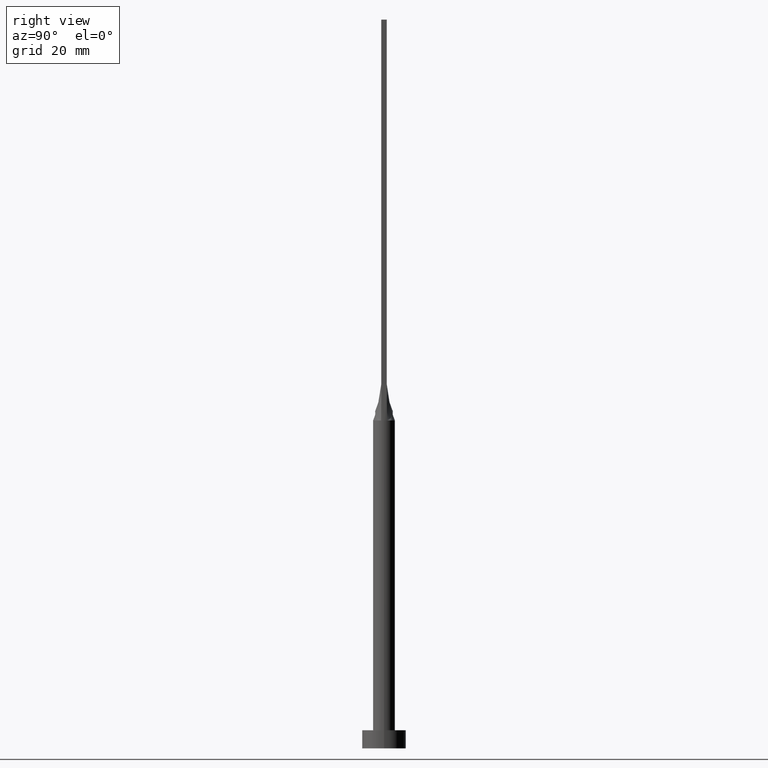
[diagram: clean part render]
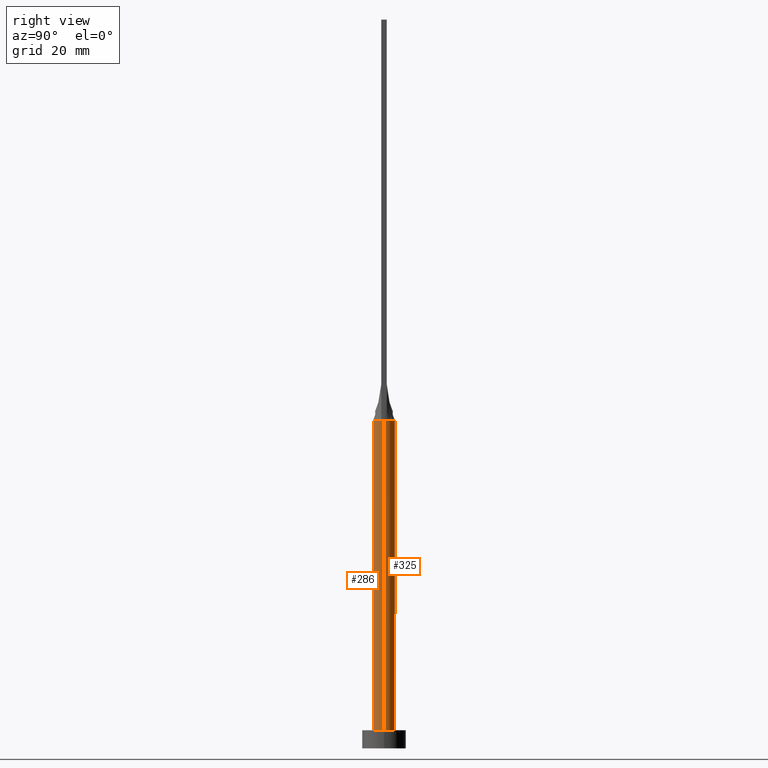
[diagram: same view with one multi-face feature highlighted, each face labeled with its STEP entity id]
A machine part, right view. The highlighted faces form ONE feature: a constant-radius fillet chain: 2 tangent blend faces with common blend radius 3 mm. The faces share edges in the B-rep.
Their STEP definitions:
[1] entity #286 (Cylinder):
#3 = FACE_OUTER_BOUND ( 'NONE', #113, .T. ) ;
#13 = DIRECTION ( 'NONE',  ( 0.000000000000000000, 0.000000000000000000, 1.000000000000000000 ) ) ;
#15 = CIRCLE ( 'NONE', #347, 3.000000000000000444 ) ;
#27 = CARTESIAN_POINT ( 'NONE',  ( -3.000000000000000444, 0.000000000000000000, 90.00000000000001421 ) ) ;
#33 = VERTEX_POINT ( 'NONE', #200 ) ;
#34 = EDGE_CURVE ( 'NONE', #555, #552, #298, .T. ) ;
#40 = DIRECTION ( 'NONE',  ( -0.000000000000000000, -0.000000000000000000, -1.000000000000000000 ) ) ;
#42 = EDGE_CURVE ( 'NONE', #243, #407, #15, .T. ) ;
#54 = AXIS2_PLACEMENT_3D ( 'NONE', #293, #13, #196 ) ;
#62 = ORIENTED_EDGE ( 'NONE', *, *, #455, .F. ) ;
#67 = DIRECTION ( 'NONE',  ( 1.000000000000000000, 0.000000000000000000, 0.000000000000000000 ) ) ;
#88 = VECTOR ( 'NONE', #40, 1000.000000000000000 ) ;
#90 = AXIS2_PLACEMENT_3D ( 'NONE', #124, #327, #253 ) ;
#108 = DIRECTION ( 'NONE',  ( 1.000000000000000000, -5.329070518200751394E-15, 0.000000000000000000 ) ) ;
#113 = EDGE_LOOP ( 'NONE', ( #247, #131, #62, #568, #150, #260 ) ) ;
#124 = CARTESIAN_POINT ( 'NONE',  ( 0.000000000000000000, 0.000000000000000000, 90.00000000000001421 ) ) ;
#128 = AXIS2_PLACEMENT_3D ( 'NONE', #236, #328, #67 ) ;
#130 = EDGE_CURVE ( 'NONE', #340, #33, #416, .T. ) ;
#131 = ORIENTED_EDGE ( 'NONE', *, *, #42, .F. ) ;
#144 = CARTESIAN_POINT ( 'NONE',  ( 3.000000000000000444, 3.673940397442060361E-16, 90.00000000000001421 ) ) ;
#150 = ORIENTED_EDGE ( 'NONE', *, *, #152, .T. ) ;
#152 = EDGE_CURVE ( 'NONE', #340, #555, #390, .T. ) ;
#196 = DIRECTION ( 'NONE',  ( 1.000000000000000000, 0.000000000000000000, 0.000000000000000000 ) ) ;
#200 = CARTESIAN_POINT ( 'NONE',  ( -2.894489875237701959, -0.7894071376467488577, 90.00000000000001421 ) ) ;
#236 = CARTESIAN_POINT ( 'NONE',  ( 0.000000000000000000, 0.000000000000000000, 5.000000000000000000 ) ) ;
#243 = VERTEX_POINT ( 'NONE', #493 ) ;
#247 = ORIENTED_EDGE ( 'NONE', *, *, #250, .F. ) ;
#250 = EDGE_CURVE ( 'NONE', #407, #552, #400, .T. ) ;
#253 = DIRECTION ( 'NONE',  ( 1.000000000000000000, 0.000000000000000000, 0.000000000000000000 ) ) ;
#260 = ORIENTED_EDGE ( 'NONE', *, *, #34, .T. ) ;
#285 = DIRECTION ( 'NONE',  ( 0.000000000000000000, 0.000000000000000000, 1.000000000000000000 ) ) ;
#286 = ADVANCED_FACE ( 'NONE', ( #3 ), #453, .T. ) ;
#293 = CARTESIAN_POINT ( 'NONE',  ( 0.000000000000000000, 0.000000000000000000, 90.00000000000001421 ) ) ;
#298 = CIRCLE ( 'NONE', #128, 3.000000000000000444 ) ;
#304 = CARTESIAN_POINT ( 'NONE',  ( -3.000000000000000000, -1.912111867153115409E-16, 90.00000000000001421 ) ) ;
#327 = DIRECTION ( 'NONE',  ( 0.000000000000000000, 0.000000000000000000, 1.000000000000000000 ) ) ;
#328 = DIRECTION ( 'NONE',  ( 0.000000000000000000, 0.000000000000000000, 1.000000000000000000 ) ) ;
#332 = CARTESIAN_POINT ( 'NONE',  ( 0.000000000000000000, 0.000000000000000000, 90.00000000000001421 ) ) ;
#340 = VERTEX_POINT ( 'NONE', #304 ) ;
#347 = AXIS2_PLACEMENT_3D ( 'NONE', #332, #285, #108 ) ;
#348 = CIRCLE ( 'NONE', #90, 3.000000000000000444 ) ;
#353 = AXIS2_PLACEMENT_3D ( 'NONE', #361, #542, #485 ) ;
#361 = CARTESIAN_POINT ( 'NONE',  ( 0.000000000000000000, 0.000000000000000000, 90.00000000000001421 ) ) ;
#390 = LINE ( 'NONE', #27, #494 ) ;
#395 = CARTESIAN_POINT ( 'NONE',  ( -3.000000000000000444, 0.000000000000000000, 5.000000000000000000 ) ) ;
#400 = LINE ( 'NONE', #144, #88 ) ;
#407 = VERTEX_POINT ( 'NONE', #504 ) ;
#416 = CIRCLE ( 'NONE', #54, 3.000000000000000444 ) ;
#453 = CYLINDRICAL_SURFACE ( 'NONE', #353, 3.000000000000000444 ) ;
#455 = EDGE_CURVE ( 'NONE', #33, #243, #348, .T. ) ;
#485 = DIRECTION ( 'NONE',  ( -1.000000000000000000, 0.000000000000000000, 0.000000000000000000 ) ) ;
#493 = CARTESIAN_POINT ( 'NONE',  ( 2.894514141151844910, -0.7894138151126538494, 90.00000000000001421 ) ) ;
#494 = VECTOR ( 'NONE', #522, 1000.000000000000000 ) ;
#504 = CARTESIAN_POINT ( 'NONE',  ( 3.000000000000000888, 4.817174831141495148E-17, 90.00000000000001421 ) ) ;
#522 = DIRECTION ( 'NONE',  ( -0.000000000000000000, -0.000000000000000000, -1.000000000000000000 ) ) ;
#538 = CARTESIAN_POINT ( 'NONE',  ( 3.000000000000000444, 3.673940397442060361E-16, 5.000000000000000000 ) ) ;
#542 = DIRECTION ( 'NONE',  ( -0.000000000000000000, -0.000000000000000000, -1.000000000000000000 ) ) ;
#552 = VERTEX_POINT ( 'NONE', #538 ) ;
#555 = VERTEX_POINT ( 'NONE', #395 ) ;
#568 = ORIENTED_EDGE ( 'NONE', *, *, #130, .F. ) ;
[2] entity #325 (Cylinder):
#27 = CARTESIAN_POINT ( 'NONE',  ( -3.000000000000000444, 0.000000000000000000, 90.00000000000001421 ) ) ;
#40 = DIRECTION ( 'NONE',  ( -0.000000000000000000, -0.000000000000000000, -1.000000000000000000 ) ) ;
#44 = DIRECTION ( 'NONE',  ( 0.000000000000000000, 0.000000000000000000, 1.000000000000000000 ) ) ;
#77 = ORIENTED_EDGE ( 'NONE', *, *, #152, .F. ) ;
#83 = ORIENTED_EDGE ( 'NONE', *, *, #534, .T. ) ;
#86 = CARTESIAN_POINT ( 'NONE',  ( 0.000000000000000000, 0.000000000000000000, 90.00000000000001421 ) ) ;
#88 = VECTOR ( 'NONE', #40, 1000.000000000000000 ) ;
#99 = CARTESIAN_POINT ( 'NONE',  ( 2.894482401701604424, 0.7894050286368272662, 90.00000000000001421 ) ) ;
#119 = ORIENTED_EDGE ( 'NONE', *, *, #271, .F. ) ;
#134 = DIRECTION ( 'NONE',  ( 0.000000000000000000, 0.000000000000000000, 1.000000000000000000 ) ) ;
#137 = DIRECTION ( 'NONE',  ( -0.000000000000000000, -0.000000000000000000, -1.000000000000000000 ) ) ;
#144 = CARTESIAN_POINT ( 'NONE',  ( 3.000000000000000444, 3.673940397442060361E-16, 90.00000000000001421 ) ) ;
#152 = EDGE_CURVE ( 'NONE', #340, #555, #390, .T. ) ;
#177 = CARTESIAN_POINT ( 'NONE',  ( 1.751288851749022379, 2.458468820606022565, 89.99999999999997158 ) ) ;
#180 = CARTESIAN_POINT ( 'NONE',  ( -0.3818979204996078569, 3.000000000000000888, 89.99999999999998579 ) ) ;
#182 = EDGE_CURVE ( 'NONE', #254, #572, #356, .T. ) ;
#202 = EDGE_CURVE ( 'NONE', #572, #340, #266, .T. ) ;
#205 = AXIS2_PLACEMENT_3D ( 'NONE', #495, #137, #484 ) ;
#215 = CARTESIAN_POINT ( 'NONE',  ( -1.751288851749021491, 2.458468820606022565, 89.99999999999998579 ) ) ;
#219 = CARTESIAN_POINT ( 'NONE',  ( 2.894482401701604424, 0.7894050286368272662, 90.00000000000001421 ) ) ;
#223 = CARTESIAN_POINT ( 'NONE',  ( 0.000000000000000000, 0.000000000000000000, 90.00000000000001421 ) ) ;
#228 = DIRECTION ( 'NONE',  ( 1.000000000000000000, 0.000000000000000000, 0.000000000000000000 ) ) ;
#233 = ORIENTED_EDGE ( 'NONE', *, *, #202, .F. ) ;
#250 = EDGE_CURVE ( 'NONE', #407, #552, #400, .T. ) ;
#252 = CARTESIAN_POINT ( 'NONE',  ( 0.000000000000000000, 0.000000000000000000, 5.000000000000000000 ) ) ;
#254 = VERTEX_POINT ( 'NONE', #99 ) ;
#257 = CARTESIAN_POINT ( 'NONE',  ( 2.830829925251657997, 1.022044525068634302, 90.00000000000004263 ) ) ;
#259 = ORIENTED_EDGE ( 'NONE', *, *, #250, .T. ) ;
#266 = CIRCLE ( 'NONE', #385, 3.000000000000000444 ) ;
#271 = EDGE_CURVE ( 'NONE', #407, #254, #379, .T. ) ;
#273 = CIRCLE ( 'NONE', #573, 3.000000000000000444 ) ;
#275 = CYLINDRICAL_SURFACE ( 'NONE', #205, 3.000000000000000444 ) ;
#282 = EDGE_LOOP ( 'NONE', ( #119, #259, #83, #77, #233, #438 ) ) ;
#297 = CARTESIAN_POINT ( 'NONE',  ( 0.3818979204996085230, 3.000000000000001332, 90.00000000000001421 ) ) ;
#300 = CARTESIAN_POINT ( 'NONE',  ( 2.248179627679386172, 2.014142483996539834, 89.99999999999998579 ) ) ;
#304 = CARTESIAN_POINT ( 'NONE',  ( -3.000000000000000000, -1.912111867153115409E-16, 90.00000000000001421 ) ) ;
#307 = FACE_OUTER_BOUND ( 'NONE', #282, .T. ) ;
#325 = ADVANCED_FACE ( 'NONE', ( #307 ), #275, .T. ) ;
#340 = VERTEX_POINT ( 'NONE', #304 ) ;
#345 = DIRECTION ( 'NONE',  ( 1.000000000000000000, 0.000000000000000000, 0.000000000000000000 ) ) ;
#356 = B_SPLINE_CURVE_WITH_KNOTS ( 'NONE', 3,
 ( #219, #257, #578, #393, #300, #177, #432, #439, #297, #180, #384, #535, #215, #532, #476, #564, #570, #574 ),
 .UNSPECIFIED., .F., .F.,
 ( 4, 2, 2, 2, 2, 2, 2, 2, 4 ),
 ( 0.000000000000000000, 0.1250000000000000000, 0.2500000000000000000, 0.3750000000000000000, 0.5000000000000000000, 0.6250000000000000000, 0.7500000000000000000, 0.8750000000000000000, 1.000000000000000000 ),
 .UNSPECIFIED. ) ;
#365 = DIRECTION ( 'NONE',  ( 1.000000000000000000, 0.000000000000000000, 0.000000000000000000 ) ) ;
#379 = CIRCLE ( 'NONE', #459, 3.000000000000000444 ) ;
#384 = CARTESIAN_POINT ( 'NONE',  ( -0.7628506052746797383, 2.924692134573155133, 90.00000000000002842 ) ) ;
#385 = AXIS2_PLACEMENT_3D ( 'NONE', #86, #134, #345 ) ;
#390 = LINE ( 'NONE', #27, #494 ) ;
#393 = CARTESIAN_POINT ( 'NONE',  ( 2.442412046818595250, 1.765588549521970529, 90.00000000000004263 ) ) ;
#395 = CARTESIAN_POINT ( 'NONE',  ( -3.000000000000000444, 0.000000000000000000, 5.000000000000000000 ) ) ;
#400 = LINE ( 'NONE', #144, #88 ) ;
#407 = VERTEX_POINT ( 'NONE', #504 ) ;
#425 = DIRECTION ( 'NONE',  ( 0.000000000000000000, 0.000000000000000000, 1.000000000000000000 ) ) ;
#432 = CARTESIAN_POINT ( 'NONE',  ( 1.447928580458859305, 2.653161878569118670, 90.00000000000004263 ) ) ;
#437 = CARTESIAN_POINT ( 'NONE',  ( -2.894506632021299541, 0.7894116946786272626, 90.00000000000001421 ) ) ;
#438 = ORIENTED_EDGE ( 'NONE', *, *, #182, .F. ) ;
#439 = CARTESIAN_POINT ( 'NONE',  ( 0.7628506052746800714, 2.924692134573154689, 90.00000000000004263 ) ) ;
#459 = AXIS2_PLACEMENT_3D ( 'NONE', #223, #44, #228 ) ;
#476 = CARTESIAN_POINT ( 'NONE',  ( -2.442412046818596139, 1.765588549521969641, 90.00000000000004263 ) ) ;
#484 = DIRECTION ( 'NONE',  ( -1.000000000000000000, 0.000000000000000000, 0.000000000000000000 ) ) ;
#494 = VECTOR ( 'NONE', #522, 1000.000000000000000 ) ;
#495 = CARTESIAN_POINT ( 'NONE',  ( 0.000000000000000000, 0.000000000000000000, 90.00000000000001421 ) ) ;
#504 = CARTESIAN_POINT ( 'NONE',  ( 3.000000000000000888, 4.817174831141495148E-17, 90.00000000000001421 ) ) ;
#522 = DIRECTION ( 'NONE',  ( -0.000000000000000000, -0.000000000000000000, -1.000000000000000000 ) ) ;
#532 = CARTESIAN_POINT ( 'NONE',  ( -2.248179627679385728, 2.014142483996540278, 89.99999999999997158 ) ) ;
#534 = EDGE_CURVE ( 'NONE', #552, #555, #273, .T. ) ;
#535 = CARTESIAN_POINT ( 'NONE',  ( -1.447928580458858416, 2.653161878569119558, 90.00000000000004263 ) ) ;
#538 = CARTESIAN_POINT ( 'NONE',  ( 3.000000000000000444, 3.673940397442060361E-16, 5.000000000000000000 ) ) ;
#552 = VERTEX_POINT ( 'NONE', #538 ) ;
#555 = VERTEX_POINT ( 'NONE', #395 ) ;
#564 = CARTESIAN_POINT ( 'NONE',  ( -2.733316749964668002, 1.269511353635830453, 90.00000000000004263 ) ) ;
#570 = CARTESIAN_POINT ( 'NONE',  ( -2.830829925251659329, 1.022044525068634302, 90.00000000000005684 ) ) ;
#572 = VERTEX_POINT ( 'NONE', #437 ) ;
#573 = AXIS2_PLACEMENT_3D ( 'NONE', #252, #425, #365 ) ;
#574 = CARTESIAN_POINT ( 'NONE',  ( -2.894506632021299541, 0.7894116946786272626, 90.00000000000001421 ) ) ;
#578 = CARTESIAN_POINT ( 'NONE',  ( 2.733316749964668446, 1.269511353635831341, 90.00000000000002842 ) ) ;